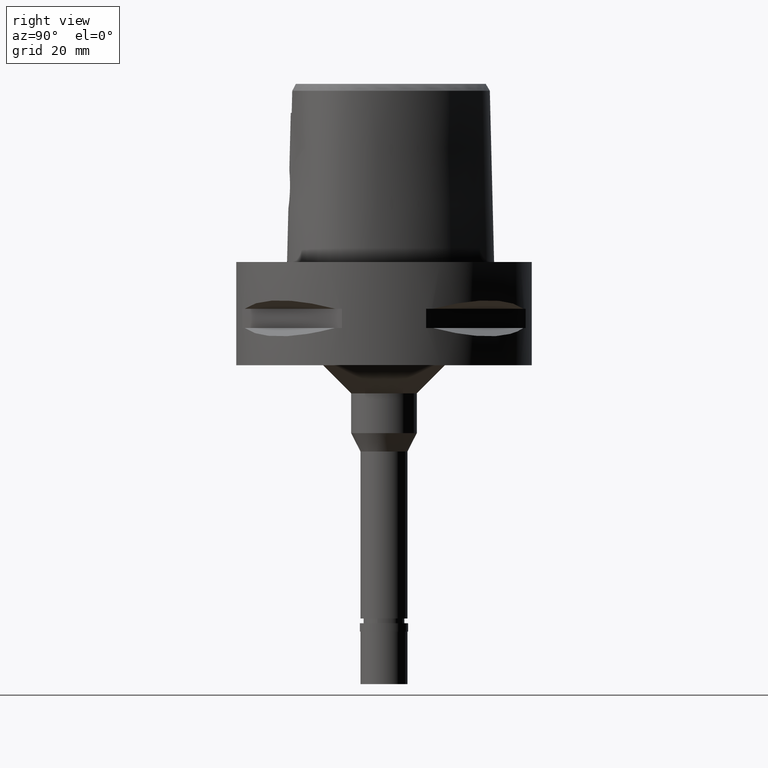
[diagram: clean part render]
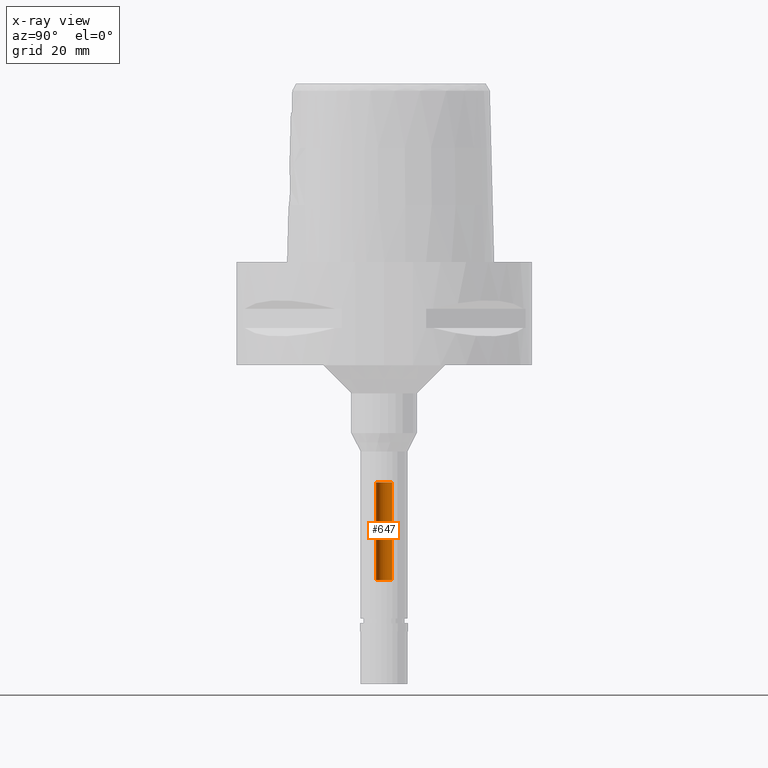
[diagram: x-ray — body ghosted, one internal face saturated and labeled with its STEP entity id]
A machine part, right view, then the same camera in x-ray: the body is ghosted and one INTERNAL B-rep face — a face not visible from any outside direction — is saturated and labeled: STEP entity #647.
In plain terms, the highlighted cylindrical surface (edge-blend (fillet) strip) has radius 1.7 mm, axis along (0, 0, -1).
Its self-contained STEP definition (entity closure, byte-faithful):
#286 = ORIENTED_EDGE ( 'NONE', *, *, #663, .T. ) ;
#647 = ADVANCED_FACE ( 'NONE', ( #3145 ), #2349, .F. ) ;
#663 = EDGE_CURVE ( 'NONE', #2582, #4634, #2724, .T. ) ;
#693 = ORIENTED_EDGE ( 'NONE', *, *, #3328, .T. ) ;
#907 = DIRECTION ( 'NONE',  ( 0.0000000000000000000, 0.0000000000000000000, 1.000000000000000000 ) ) ;
#1112 = AXIS2_PLACEMENT_3D ( 'NONE', #2834, #907, #3900 ) ;
#1286 = EDGE_LOOP ( 'NONE', ( #286, #2653, #2876, #693 ) ) ;
#1407 = VECTOR ( 'NONE', #2307, 1000.000000000000000 ) ;
#1627 = DIRECTION ( 'NONE',  ( 0.0000000000000000000, -1.000000000000000000, 0.0000000000000000000 ) ) ;
#1934 = DIRECTION ( 'NONE',  ( 0.0000000000000000000, 0.0000000000000000000, -1.000000000000000000 ) ) ;
#2188 = LINE ( 'NONE', #3386, #2484 ) ;
#2307 = DIRECTION ( 'NONE',  ( 0.0000000000000000000, 0.0000000000000000000, 1.000000000000000000 ) ) ;
#2349 = CYLINDRICAL_SURFACE ( 'NONE', #3368, 1.699999999999999956 ) ;
#2484 = VECTOR ( 'NONE', #3760, 1000.000000000000000 ) ;
#2582 = VERTEX_POINT ( 'NONE', #3802 ) ;
#2653 = ORIENTED_EDGE ( 'NONE', *, *, #3893, .F. ) ;
#2724 = CIRCLE ( 'NONE', #1112, 1.699999999999999956 ) ;
#2834 = CARTESIAN_POINT ( 'NONE',  ( 0.0000000000000000000, 1.277490308530999908E-14, -47.00000000000000000 ) ) ;
#2876 = ORIENTED_EDGE ( 'NONE', *, *, #4133, .T. ) ;
#2950 = CARTESIAN_POINT ( 'NONE',  ( 0.0000000000000000000, -1.699999999999999956, -67.79999999999999716 ) ) ;
#2965 = VERTEX_POINT ( 'NONE', #4769 ) ;
#3145 = FACE_OUTER_BOUND ( 'NONE', #1286, .T. ) ;
#3328 = EDGE_CURVE ( 'NONE', #4625, #2582, #2188, .T. ) ;
#3368 = AXIS2_PLACEMENT_3D ( 'NONE', #3544, #4313, #1627 ) ;
#3386 = CARTESIAN_POINT ( 'NONE',  ( 0.0000000000000000000, 1.699999999999999956, -67.79999999999999716 ) ) ;
#3501 = DIRECTION ( 'NONE',  ( 0.0000000000000000000, -1.000000000000000000, 0.0000000000000000000 ) ) ;
#3544 = CARTESIAN_POINT ( 'NONE',  ( 0.0000000000000000000, 1.277490308530999908E-14, 4.315000000000000391 ) ) ;
#3760 = DIRECTION ( 'NONE',  ( 0.0000000000000000000, 0.0000000000000000000, 1.000000000000000000 ) ) ;
#3802 = CARTESIAN_POINT ( 'NONE',  ( 0.0000000000000000000, 1.699999999999999956, -47.00000000000000000 ) ) ;
#3862 = CARTESIAN_POINT ( 'NONE',  ( 0.0000000000000000000, 1.277490308530999908E-14, -67.79999999999999716 ) ) ;
#3884 = LINE ( 'NONE', #2950, #1407 ) ;
#3893 = EDGE_CURVE ( 'NONE', #2965, #4634, #3884, .T. ) ;
#3900 = DIRECTION ( 'NONE',  ( 0.0000000000000000000, 1.000000000000000000, 0.0000000000000000000 ) ) ;
#3971 = CARTESIAN_POINT ( 'NONE',  ( 0.0000000000000000000, -1.699999999999999956, -47.00000000000000000 ) ) ;
#4133 = EDGE_CURVE ( 'NONE', #2965, #4625, #4729, .T. ) ;
#4313 = DIRECTION ( 'NONE',  ( 0.0000000000000000000, 0.0000000000000000000, -1.000000000000000000 ) ) ;
#4325 = AXIS2_PLACEMENT_3D ( 'NONE', #3862, #1934, #3501 ) ;
#4336 = CARTESIAN_POINT ( 'NONE',  ( 0.0000000000000000000, 1.699999999999999956, -67.79999999999999716 ) ) ;
#4625 = VERTEX_POINT ( 'NONE', #4336 ) ;
#4634 = VERTEX_POINT ( 'NONE', #3971 ) ;
#4729 = CIRCLE ( 'NONE', #4325, 1.699999999999999956 ) ;
#4769 = CARTESIAN_POINT ( 'NONE',  ( 0.0000000000000000000, -1.699999999999999956, -67.79999999999999716 ) ) ;